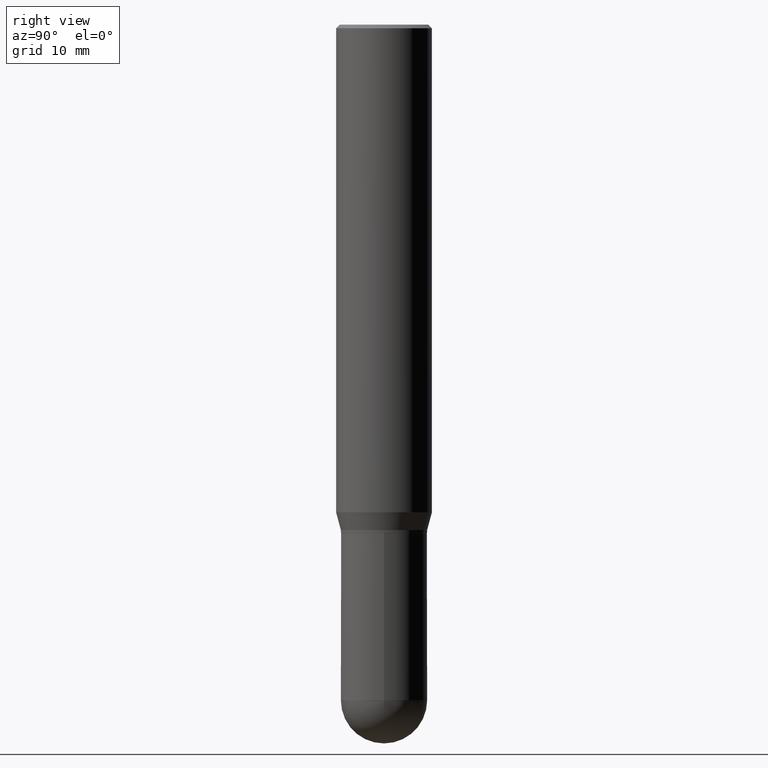
[diagram: clean part render]
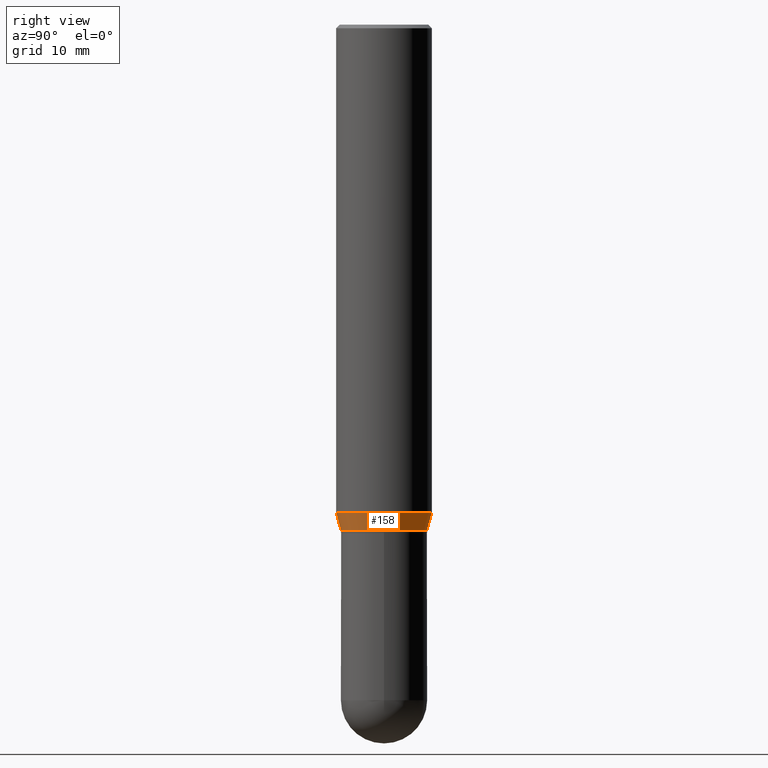
[diagram: same view with one face highlighted and labeled with its STEP entity id]
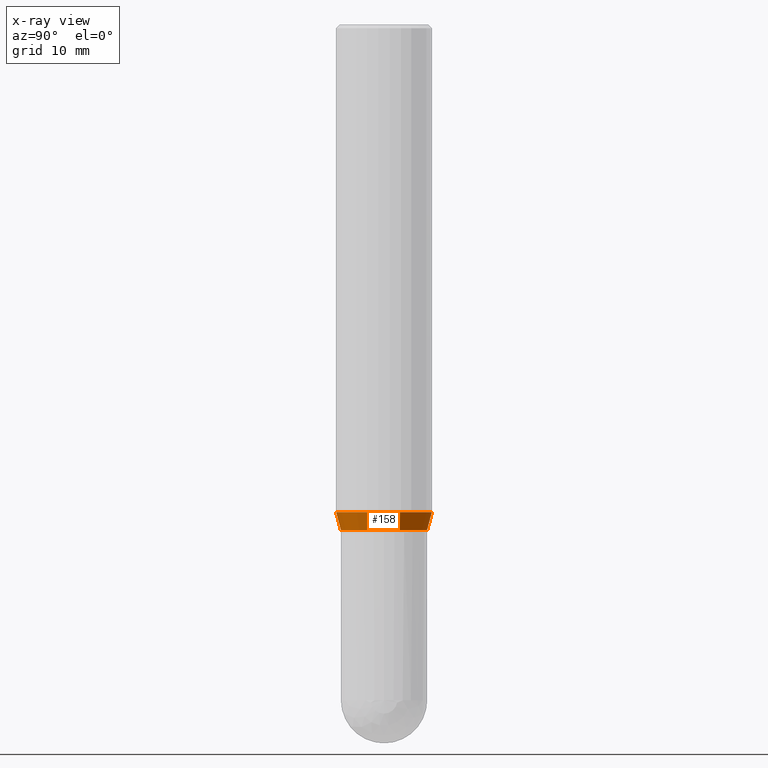
[diagram: x-ray of the same camera — body ghosted, the highlighted face saturated]
A machine part, right view. The second image highlights one B-rep face of the part: STEP entity #158.
The next image is the same camera in x-ray: the body ghosted, the highlighted face saturated — about 0% of this face is hidden behind the body in this view.
In plain terms, the highlighted conical surface has half-angle 15 deg.
Its self-contained STEP definition (entity closure, byte-faithful):
#9 = VECTOR ( 'NONE', #320, 39.37007874015748854 ) ;
#15 = CARTESIAN_POINT ( 'NONE',  ( 1.328714915871437240E-15, 0.1771499999999927855, -2.076700000000000657 ) ) ;
#26 = CIRCLE ( 'NONE', #118, 0.1968499999999999694 ) ;
#34 = CARTESIAN_POINT ( 'NONE',  ( 1.398703375343805514E-15, 0.1968499999999929750, -2.003178599090894352 ) ) ;
#62 = DIRECTION ( 'NONE',  ( -6.982962677686265922E-15, -1.000000000000000000, 3.084220145260246224E-15 ) ) ;
#72 = AXIS2_PLACEMENT_3D ( 'NONE', #424, #144, #62 ) ;
#91 = VERTEX_POINT ( 'NONE', #15 ) ;
#113 = CARTESIAN_POINT ( 'NONE',  ( 5.079738387433100219E-29, -7.248993115335574834E-15, -2.076700000000000212 ) ) ;
#118 = AXIS2_PLACEMENT_3D ( 'NONE', #415, #388, #358 ) ;
#143 = DIRECTION ( 'NONE',  ( -6.982962677686265922E-15, -1.000000000000000000, 3.084220145260246224E-15 ) ) ;
#144 = DIRECTION ( 'NONE',  ( -2.446062689571483486E-29, 3.490630864032153582E-15, 1.000000000000000000 ) ) ;
#157 = LINE ( 'NONE', #478, #9 ) ;
#158 = ADVANCED_FACE ( 'NONE', ( #236 ), #382, .T. ) ;
#181 = VERTEX_POINT ( 'NONE', #34 ) ;
#208 = VERTEX_POINT ( 'NONE', #431 ) ;
#218 = AXIS2_PLACEMENT_3D ( 'NONE', #113, #507, #143 ) ;
#223 = VECTOR ( 'NONE', #396, 39.37007874015748143 ) ;
#226 = VERTEX_POINT ( 'NONE', #327 ) ;
#236 = FACE_OUTER_BOUND ( 'NONE', #276, .T. ) ;
#242 = ORIENTED_EDGE ( 'NONE', *, *, #456, .F. ) ;
#263 = EDGE_CURVE ( 'NONE', #226, #208, #316, .T. ) ;
#276 = EDGE_LOOP ( 'NONE', ( #308, #483, #242, #378 ) ) ;
#291 = EDGE_CURVE ( 'NONE', #226, #91, #331, .T. ) ;
#308 = ORIENTED_EDGE ( 'NONE', *, *, #291, .T. ) ;
#316 = LINE ( 'NONE', #503, #223 ) ;
#320 = DIRECTION ( 'NONE',  ( 1.839019923739597554E-15, 0.2588190451025245697, 0.9659258262890670910 ) ) ;
#327 = CARTESIAN_POINT ( 'NONE',  ( -1.237031838352071315E-15, -0.1771500000000072461, -2.076699999999999768 ) ) ;
#331 = CIRCLE ( 'NONE', #218, 0.1771500000000000019 ) ;
#358 = DIRECTION ( 'NONE',  ( -6.982962677686265922E-15, -1.000000000000000000, 4.163344669033675634E-15 ) ) ;
#361 = EDGE_CURVE ( 'NONE', #91, #181, #157, .T. ) ;
#378 = ORIENTED_EDGE ( 'NONE', *, *, #263, .F. ) ;
#382 = CONICAL_SURFACE ( 'NONE', #72, 0.1771500000000000019, 0.2617993877991499074 ) ;
#388 = DIRECTION ( 'NONE',  ( -2.446062689571483486E-29, 3.490630864032153582E-15, 1.000000000000000000 ) ) ;
#396 = DIRECTION ( 'NONE',  ( -1.807323732225327773E-15, -0.2588190451025178529, 0.9659258262890690894 ) ) ;
#415 = CARTESIAN_POINT ( 'NONE',  ( 4.899900431784307607E-29, -6.992357044155365474E-15, -2.003178599090893464 ) ) ;
#424 = CARTESIAN_POINT ( 'NONE',  ( 5.079738387433100219E-29, -7.248993115335574834E-15, -2.076700000000000212 ) ) ;
#431 = CARTESIAN_POINT ( 'NONE',  ( -1.374596203102492502E-15, -0.1968500000000069916, -2.003178599090893020 ) ) ;
#456 = EDGE_CURVE ( 'NONE', #208, #181, #26, .T. ) ;
#478 = CARTESIAN_POINT ( 'NONE',  ( 1.258726456399067980E-15, 0.1771499999999927855, -2.076700000000000657 ) ) ;
#483 = ORIENTED_EDGE ( 'NONE', *, *, #361, .T. ) ;
#503 = CARTESIAN_POINT ( 'NONE',  ( -1.237031838352071315E-15, -0.1771500000000072461, -2.076699999999999768 ) ) ;
#507 = DIRECTION ( 'NONE',  ( -2.446062689571483486E-29, 3.490630864032153582E-15, 1.000000000000000000 ) ) ;